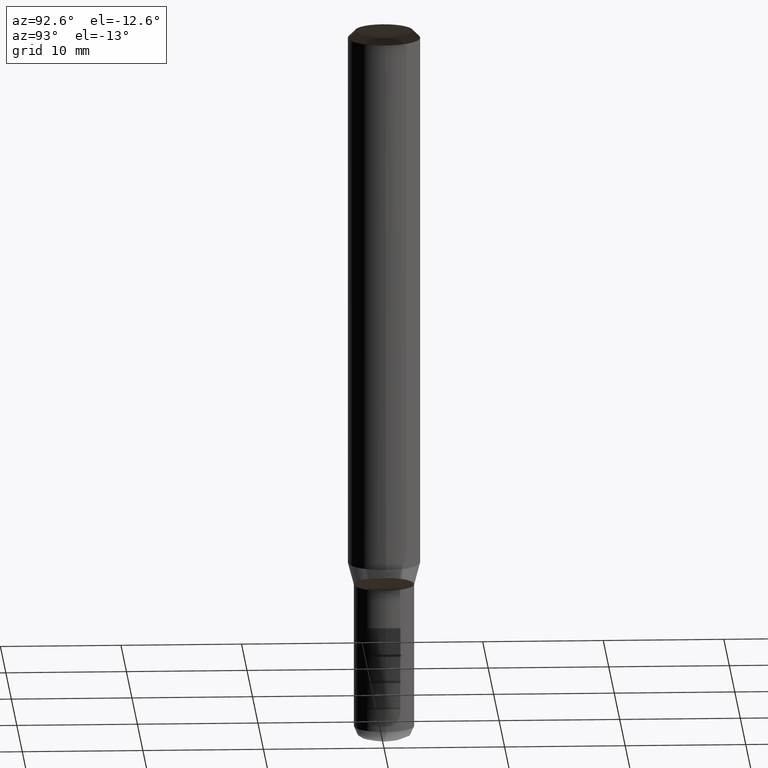
[diagram: clean part render]
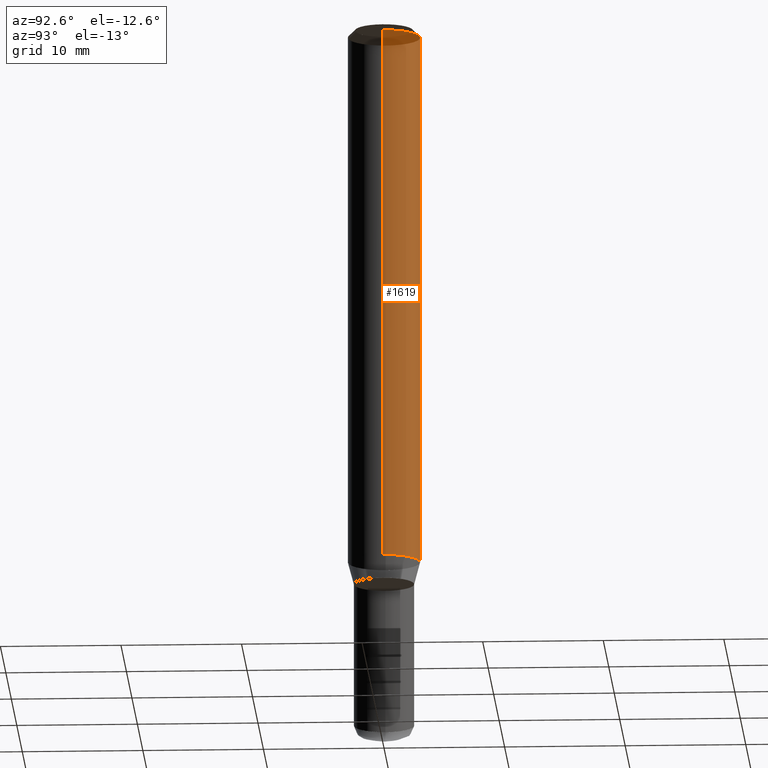
[diagram: same view with one face highlighted and labeled with its STEP entity id]
A machine part, auxiliary view. The second image highlights one B-rep face of the part: STEP entity #1619.
In plain terms, the highlighted face is a freeform B-spline surface patch.
Its self-contained STEP definition (entity closure, byte-faithful):
#1382=CARTESIAN_POINT('',(3.0,0.0,0.0));
#1383=CARTESIAN_POINT('',(3.0,3.0,0.0));
#1384=CARTESIAN_POINT('',(0.0,3.0,0.0));
#1385=CARTESIAN_POINT('',(-3.0,3.0,0.0));
#1386=CARTESIAN_POINT('',(-3.0,0.0,0.0));
#1387=CARTESIAN_POINT('',(3.0,0.0,44.533974596216));
#1388=CARTESIAN_POINT('',(3.0,3.0,44.533974596216));
#1389=CARTESIAN_POINT('',(0.0,3.0,44.533974596216));
#1390=CARTESIAN_POINT('',(-3.0,3.0,44.533974596216));
#1391=CARTESIAN_POINT('',(-3.0,0.0,44.533974596216));
#1600=(
BOUNDED_SURFACE()
B_SPLINE_SURFACE(1,2,(
(#1382,#1383,#1384,#1385,#1386),
(#1387,#1388,#1389,#1390,#1391)
), .UNSPECIFIED.,.F.,.F.,.F.)
B_SPLINE_SURFACE_WITH_KNOTS((2,2),(3,2,3),(
0.0,1.0),(
0.0,0.5,1.0), .UNSPECIFIED.)
GEOMETRIC_REPRESENTATION_ITEM()
RATIONAL_B_SPLINE_SURFACE(((1.0,0.707106781187,1.0,0.707106781187,1.0),
(1.0,0.707106781187,1.0,0.707106781187,1.0)
))
REPRESENTATION_ITEM('')
SURFACE()
);
#1601=(
BOUNDED_CURVE()
B_SPLINE_CURVE(2,(#1387,#1388,#1389,#1390,#1391),.UNSPECIFIED.,.F.,.F.)
B_SPLINE_CURVE_WITH_KNOTS((3,2,3),
(0.0,0.5,1.0),.UNSPECIFIED.)
CURVE()
GEOMETRIC_REPRESENTATION_ITEM()
RATIONAL_B_SPLINE_CURVE((1.0,0.707106781187,1.0,0.707106781187,1.0))
REPRESENTATION_ITEM('')
);
#1602=(
BOUNDED_CURVE()
B_SPLINE_CURVE(1,(#1391,#1386),.UNSPECIFIED.,.F.,.F.)
B_SPLINE_CURVE_WITH_KNOTS((2,2),
(0.0,1.0),.UNSPECIFIED.)
CURVE()
GEOMETRIC_REPRESENTATION_ITEM()
RATIONAL_B_SPLINE_CURVE((1.0,1.0))
REPRESENTATION_ITEM('')
);
#1603=(
BOUNDED_CURVE()
B_SPLINE_CURVE(2,(#1386,#1385,#1384,#1383,#1382),.UNSPECIFIED.,.F.,.F.)
B_SPLINE_CURVE_WITH_KNOTS((3,2,3),
(0.0,0.5,1.0),.UNSPECIFIED.)
CURVE()
GEOMETRIC_REPRESENTATION_ITEM()
RATIONAL_B_SPLINE_CURVE((1.0,0.707106781187,1.0,0.707106781187,1.0))
REPRESENTATION_ITEM('')
);
#1604=(
BOUNDED_CURVE()
B_SPLINE_CURVE(1,(#1382,#1387),.UNSPECIFIED.,.F.,.F.)
B_SPLINE_CURVE_WITH_KNOTS((2,2),
(0.0,1.0),.UNSPECIFIED.)
CURVE()
GEOMETRIC_REPRESENTATION_ITEM()
RATIONAL_B_SPLINE_CURVE((1.0,1.0))
REPRESENTATION_ITEM('')
);
#1605=VERTEX_POINT('',#1382);
#1606=VERTEX_POINT('',#1386);
#1607=VERTEX_POINT('',#1387);
#1608=VERTEX_POINT('',#1391);
#1609=EDGE_CURVE('',#1607,#1608,#1601,.T.);
#1610=EDGE_CURVE('',#1608,#1606,#1602,.T.);
#1611=EDGE_CURVE('',#1606,#1605,#1603,.T.);
#1612=EDGE_CURVE('',#1605,#1607,#1604,.T.);
#1613=ORIENTED_EDGE('',*,*,#1609,.T.);
#1614=ORIENTED_EDGE('',*,*,#1610,.T.);
#1615=ORIENTED_EDGE('',*,*,#1611,.T.);
#1616=ORIENTED_EDGE('',*,*,#1612,.T.);
#1617=EDGE_LOOP('',(#1613,#1614,#1615,#1616));
#1618=FACE_OUTER_BOUND('',#1617,.T.);
#1619=ADVANCED_FACE('',(#1618),#1600,.T.);